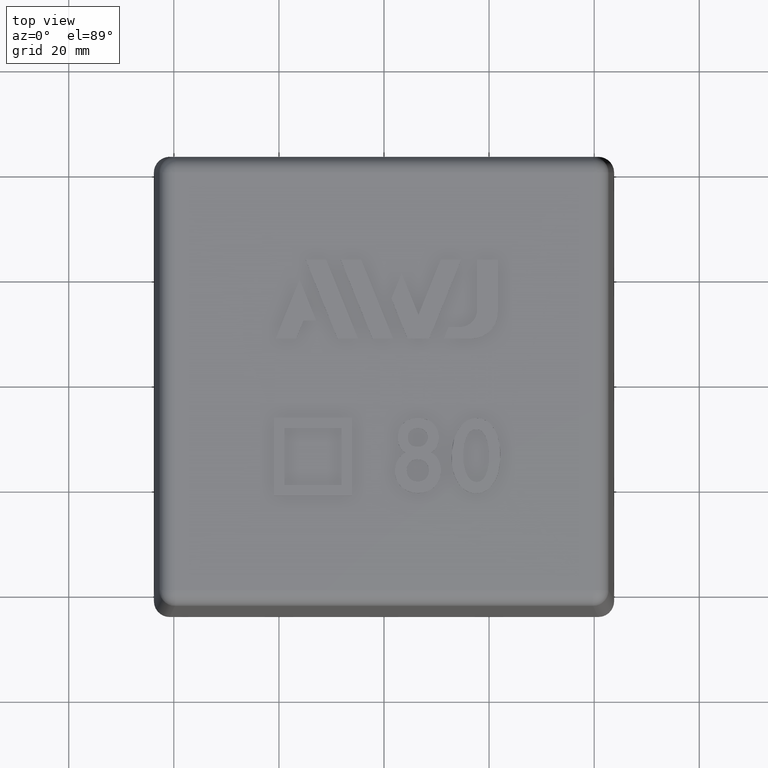
[diagram: clean part render]
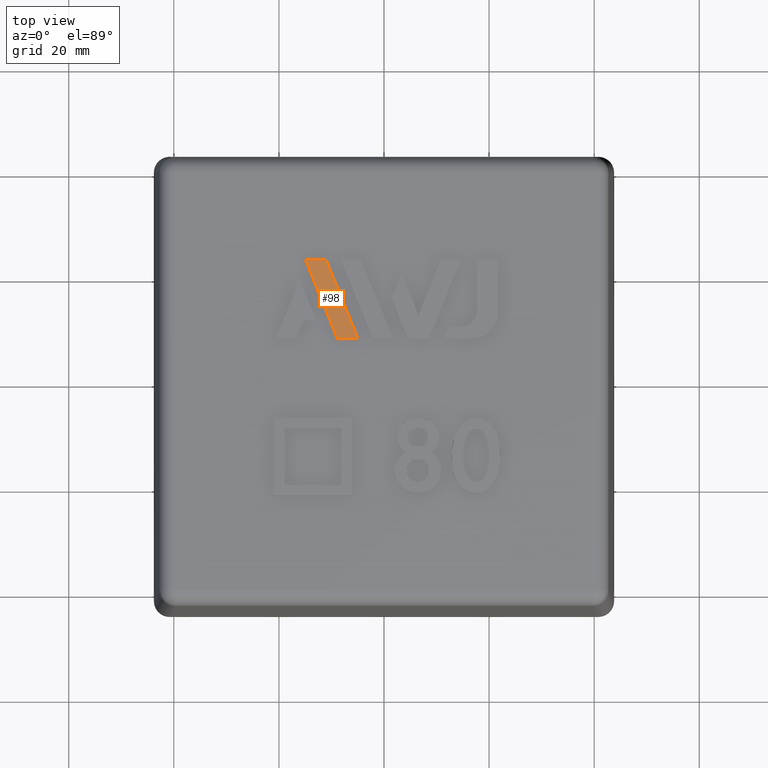
[diagram: same view with one face highlighted and labeled with its STEP entity id]
A machine part, top view. The second image highlights one B-rep face of the part: STEP entity #98.
In plain terms, the highlighted planar face has unit normal (0, 0, 1).
Its self-contained STEP definition (entity closure, byte-faithful):
#98 = ADVANCED_FACE( '', ( #211 ), #212, .T. );
#211 = FACE_OUTER_BOUND( '', #389, .T. );
#212 = PLANE( '', #390 );
#389 = EDGE_LOOP( '', ( #764, #765, #766, #767 ) );
#390 = AXIS2_PLACEMENT_3D( '', #768, #769, #770 );
#764 = ORIENTED_EDGE( '', *, *, #1260, .T. );
#765 = ORIENTED_EDGE( '', *, *, #1261, .T. );
#766 = ORIENTED_EDGE( '', *, *, #1262, .T. );
#767 = ORIENTED_EDGE( '', *, *, #1263, .T. );
#768 = CARTESIAN_POINT( '', ( 529.941291427255, 205.248361598627, 63.5000000000000 ) );
#769 = DIRECTION( '', ( 0.000000000000000, 6.12303176911189E-017, 1.00000000000000 ) );
#770 = DIRECTION( '', ( -1.00000000000000, 0.000000000000000, 0.000000000000000 ) );
#1260 = EDGE_CURVE( '', #1501, #1502, #1503, .T. );
#1261 = EDGE_CURVE( '', #1502, #1504, #1505, .T. );
#1262 = EDGE_CURVE( '', #1504, #1506, #1507, .T. );
#1263 = EDGE_CURVE( '', #1506, #1501, #1508, .T. );
#1501 = VERTEX_POINT( '', #2019 );
#1502 = VERTEX_POINT( '', #2020 );
#1503 = LINE( '', #2021, #2022 );
#1504 = VERTEX_POINT( '', #2023 );
#1505 = LINE( '', #2024, #2025 );
#1506 = VERTEX_POINT( '', #2026 );
#1507 = LINE( '', #2027, #2028 );
#1508 = LINE( '', #2029, #2030 );
#2019 = CARTESIAN_POINT( '', ( -8.83119419750004, 8.06814999999997, 63.5000000000000 ) );
#2020 = CARTESIAN_POINT( '', ( -4.95626770250003, 8.06814999999998, 63.5000000000000 ) );
#2021 = CARTESIAN_POINT( '', ( -8.83119419750004, 8.06814999999998, 63.5000000000000 ) );
#2022 = VECTOR( '', #2331, 1000.00000000000 );
#2023 = CARTESIAN_POINT( '', ( -11.0159043400000, 23.0646711800000, 63.5000000000000 ) );
#2024 = CARTESIAN_POINT( '', ( -4.95626770250003, 8.06814999999998, 63.5000000000000 ) );
#2025 = VECTOR( '', #2332, 1000.00000000000 );
#2026 = CARTESIAN_POINT( '', ( -14.8899787425000, 23.0646711800000, 63.5000000000000 ) );
#2027 = CARTESIAN_POINT( '', ( -11.0159043400000, 23.0646711800000, 63.5000000000000 ) );
#2028 = VECTOR( '', #2333, 1000.00000000000 );
#2029 = CARTESIAN_POINT( '', ( -14.8899787425000, 23.0646711800000, 63.5000000000000 ) );
#2030 = VECTOR( '', #2334, 1000.00000000000 );
#2331 = DIRECTION( '', ( 1.00000000000000, 0.000000000000000, 0.000000000000000 ) );
#2332 = DIRECTION( '', ( -0.374641075834905, 0.927169922019295, -5.67709088788913E-017 ) );
#2333 = DIRECTION( '', ( -1.00000000000000, 0.000000000000000, 0.000000000000000 ) );
#2334 = DIRECTION( '', ( 0.374595787424495, -0.927188220397468, 5.67720292944001E-017 ) );